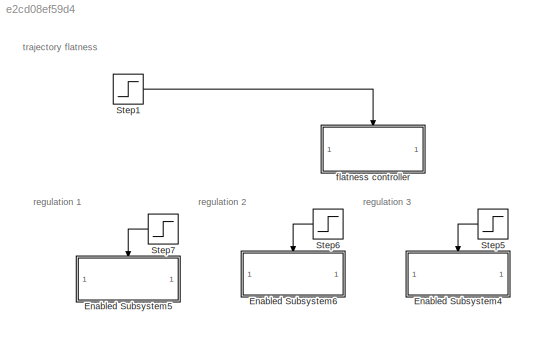
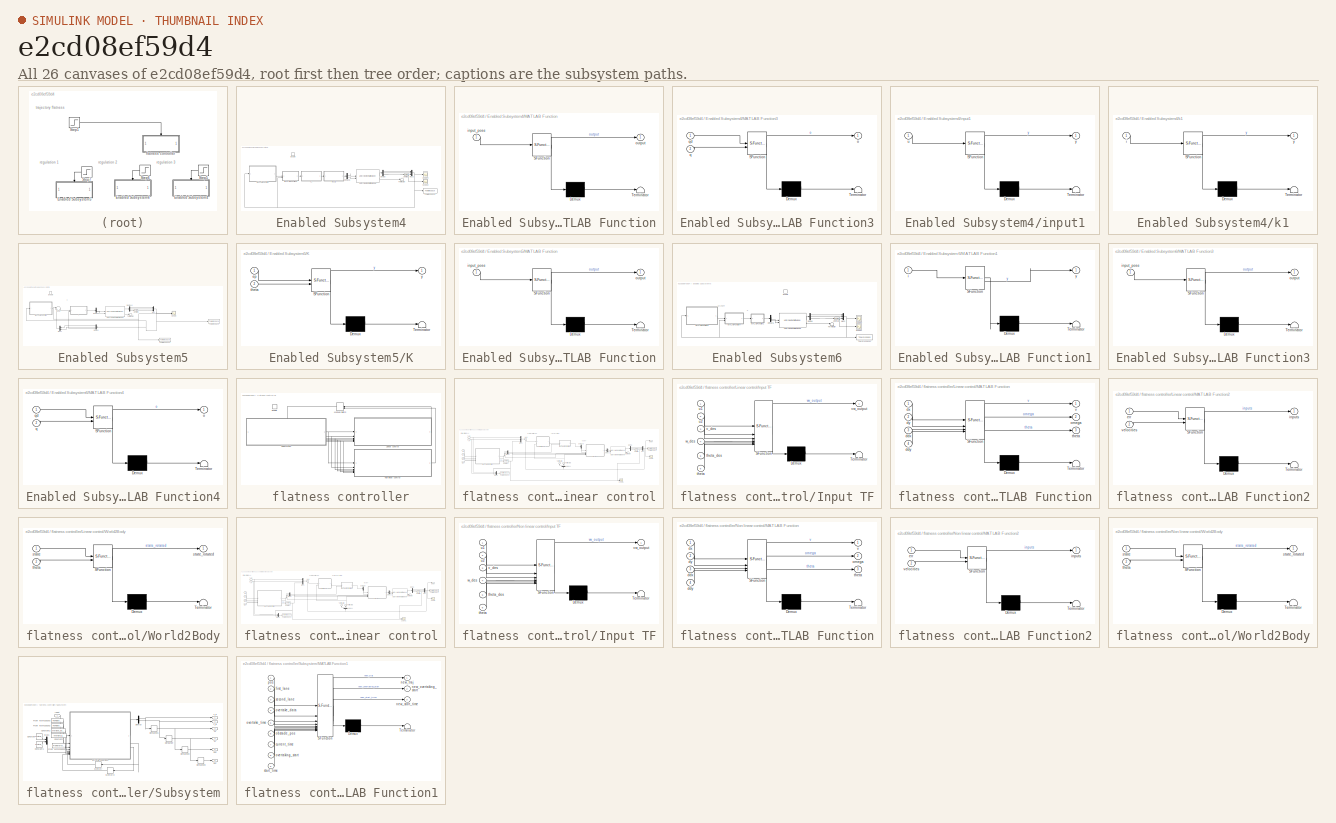
[diagram: thumbnail index - all 26 canvases of the model, root first then tree order]
MODEL slx_e2cd08ef59d4
KIND model
CONFIG AbsTol = auto
CONFIG EnableMultiTasking = off
CONFIG FixedStep = auto
CONFIG MaxStep = auto
CONFIG MinStep = auto
CONFIG RelTol = 1e-3
CONFIG SampleTimeConstraint = Unconstrained
CONFIG SolverName = FixedStepAuto
CONFIG StartTime = 0.0
CONFIG StopTime = 15
WORKSPACE source: mxarray member
WORKSPACE kp: Simulink.Parameter (value not decoded)
BLOCK [SubSystem] Enabled Subsystem4
  Commented = on
  TreatAsAtomicUnit = on
BLOCK [Demux] Enabled Subsystem4/Demux
  Outputs = 3
BLOCK [Demux] Enabled Subsystem4/Demux5
  Outputs = 2
BLOCK [EnablePort] Enabled Subsystem4/Enable
BLOCK [SubSystem] Enabled Subsystem4/MATLAB Function
  ErrorFcn = Stateflow.Translate.translate
  PermitHierarchicalResolution = ExplicitOnly
  SFBlockType = MATLAB Function
  TreatAsAtomicUnit = on
BLOCK [Demux] Enabled Subsystem4/MATLAB Function/ Demux 
  Outputs = 1
BLOCK [S-Function] Enabled Subsystem4/MATLAB Function/ SFunction 
  EnableBusSupport = on
  FunctionName = sf_sfun
  PortCounts = [1 2]
  SFcnIsStateOwnerBlock = off
  SFunctionDeploymentMode = off
  Tag = Stateflow S-Function 7
BLOCK [Terminator] Enabled Subsystem4/MATLAB Function/ Terminator 
BLOCK [Inport] Enabled Subsystem4/MATLAB Function/input_pose
BLOCK [Outport] Enabled Subsystem4/MATLAB Function/output
BLOCK [SubSystem] Enabled Subsystem4/MATLAB Function3
  ErrorFcn = Stateflow.Translate.translate
  PermitHierarchicalResolution = ExplicitOnly
  SFBlockType = MATLAB Function
  TreatAsAtomicUnit = on
BLOCK [Demux] Enabled Subsystem4/MATLAB Function3/ Demux 
  Outputs = 1
BLOCK [S-Function] Enabled Subsystem4/MATLAB Function3/ SFunction 
  EnableBusSupport = on
  FunctionName = sf_sfun
  PortCounts = [2 2]
  SFcnIsStateOwnerBlock = off
  SFunctionDeploymentMode = off
  Tag = Stateflow S-Function 8
BLOCK [Terminator] Enabled Subsystem4/MATLAB Function3/ Terminator 
BLOCK [Outport] Enabled Subsystem4/MATLAB Function3/o
BLOCK [Inport] Enabled Subsystem4/MATLAB Function3/q
  Port = 2
BLOCK [Inport] Enabled Subsystem4/MATLAB Function3/qd
BLOCK [Mux] Enabled Subsystem4/Mux2
  DisplayOption = bar
  Inputs = 3
BLOCK [Scope] Enabled Subsystem4/Scope2
  Floating = off
  NumInputPorts = 1
  ScopeSpecificationString = Simulink.scopes.TimeScopeBlockCfg('CurrentConfiguration', extmgr.ConfigurationSet(extmgr.Configuration('Core','General UI',true),extmgr.Configuration('Core','Source UI',true),extmgr.Configuration('Sources','WiredSimulink',true,'DataLoggingVariableName','ScopeData4'),extmgr.Configuration('Visuals','Time Domain',true,'SerializedDisplays',{struct('MinYLimReal','-0.51276','MaxYLimReal','1.89269','YLab...<+1417ch>
BLOCK [Scope] Enabled Subsystem4/Scope4
  Floating = off
  NumInputPorts = 1
  ScopeSpecificationString = Simulink.scopes.TimeScopeBlockCfg('CurrentConfiguration', extmgr.ConfigurationSet(extmgr.Configuration('Core','General UI',true),extmgr.Configuration('Core','Source UI',true),extmgr.Configuration('Sources','WiredSimulink',true,'DataLoggingVariableName','ScopeData5'),extmgr.Configuration('Visuals','Time Domain',true,'SerializedDisplays',{struct('MinYLimReal','-18.75885','MaxYLimReal','168.82963','Y...<+1472ch>
BLOCK [Terminator] Enabled Subsystem4/Terminator
BLOCK [ToWorkspace] Enabled Subsystem4/To Workspace1
  FixptAsFi = on
  MaxDataPoints = inf
  SampleTime = 0.004
  SaveFormat = Structure With Time
  VariableName = uni_state1
BLOCK [Reference] Enabled Subsystem4/Unicycle Kinematic Model1  REF=robotmobilelib/Unicycle Kinematic Model
  SourceBlock = robotmobilelib/Unicycle Kinematic Model
  SourceType = Unicycle Kinematic Model
BLOCK [Reference] Enabled Subsystem4/Unwrap  REF=dspsigops/Unwrap
  SourceBlock = dspsigops/Unwrap
  SourceType = Unwrap
  UserDataPersistent = on
BLOCK [SubSystem] Enabled Subsystem4/input1
  ErrorFcn = Stateflow.Translate.translate
  PermitHierarchicalResolution = ExplicitOnly
  SFBlockType = MATLAB Function
  TreatAsAtomicUnit = on
BLOCK [Demux] Enabled Subsystem4/input1/ Demux 
  Outputs = 1
BLOCK [S-Function] Enabled Subsystem4/input1/ SFunction 
  EnableBusSupport = on
  FunctionName = sf_sfun
  PortCounts = [1 2]
  SFcnIsStateOwnerBlock = off
  SFunctionDeploymentMode = off
  Tag = Stateflow S-Function 9
BLOCK [Terminator] Enabled Subsystem4/input1/ Terminator 
BLOCK [Inport] Enabled Subsystem4/input1/u
BLOCK [Outport] Enabled Subsystem4/input1/y
BLOCK [SubSystem] Enabled Subsystem4/k1
  ErrorFcn = Stateflow.Translate.translate
  PermitHierarchicalResolution = ExplicitOnly
  SFBlockType = MATLAB Function
  TreatAsAtomicUnit = on
BLOCK [Demux] Enabled Subsystem4/k1/ Demux 
  Outputs = 1
BLOCK [S-Function] Enabled Subsystem4/k1/ SFunction 
  EnableBusSupport = on
  FunctionName = sf_sfun
  PortCounts = [1 2]
  SFcnIsStateOwnerBlock = off
  SFunctionDeploymentMode = off
  Tag = Stateflow S-Function 16
BLOCK [Terminator] Enabled Subsystem4/k1/ Terminator 
BLOCK [Inport] Enabled Subsystem4/k1/i
BLOCK [Outport] Enabled Subsystem4/k1/y
BLOCK [SubSystem] Enabled Subsystem5
  TreatAsAtomicUnit = on
BLOCK [Demux] Enabled Subsystem5/Demux
  NameLocation = top
  Outputs = 3
BLOCK [Demux] Enabled Subsystem5/Demux2
  Outputs = 2
BLOCK [Demux] Enabled Subsystem5/Demux4
  Outputs = 3
BLOCK [EnablePort] Enabled Subsystem5/Enable
BLOCK [SubSystem] Enabled Subsystem5/K
  ErrorFcn = Stateflow.Translate.translate
  PermitHierarchicalResolution = ExplicitOnly
  SFBlockType = MATLAB Function
  TreatAsAtomicUnit = on
BLOCK [Demux] Enabled Subsystem5/K/ Demux 
  Outputs = 1
BLOCK [S-Function] Enabled Subsystem5/K/ SFunction 
  EnableBusSupport = on
  FunctionName = sf_sfun
  PortCounts = [2 2]
  SFcnIsStateOwnerBlock = off
  SFunctionDeploymentMode = off
  Tag = Stateflow S-Function 10
BLOCK [Terminator] Enabled Subsystem5/K/ Terminator 
BLOCK [Inport] Enabled Subsystem5/K/ep
BLOCK [Inport] Enabled Subsystem5/K/theta
  Port = 2
BLOCK [Outport] Enabled Subsystem5/K/y
BLOCK [SubSystem] Enabled Subsystem5/MATLAB Function
  ErrorFcn = Stateflow.Translate.translate
  PermitHierarchicalResolution = ExplicitOnly
  SFBlockType = MATLAB Function
  TreatAsAtomicUnit = on
BLOCK [Demux] Enabled Subsystem5/MATLAB Function/ Demux 
  Outputs = 1
BLOCK [S-Function] Enabled Subsystem5/MATLAB Function/ SFunction 
  EnableBusSupport = on
  FunctionName = sf_sfun
  PortCounts = [1 2]
  SFcnIsStateOwnerBlock = off
  SFunctionDeploymentMode = off
  Tag = Stateflow S-Function 23
BLOCK [Terminator] Enabled Subsystem5/MATLAB Function/ Terminator 
BLOCK [Inport] Enabled Subsystem5/MATLAB Function/input_pose
BLOCK [Outport] Enabled Subsystem5/MATLAB Function/output
BLOCK [Mux] Enabled Subsystem5/Mux
  DisplayOption = bar
  Inputs = 3
BLOCK [Mux] Enabled Subsystem5/Mux1
  DisplayOption = bar
  Inputs = 2
  NameLocation = top
BLOCK [Scope] Enabled Subsystem5/Scope
  Floating = off
  NumInputPorts = 2
  ScopeSpecificationString = Simulink.scopes.TimeScopeBlockCfg('CurrentConfiguration', extmgr.ConfigurationSet(extmgr.Configuration('Core','General UI',true),extmgr.Configuration('Core','Source UI',true),extmgr.Configuration('Sources','WiredSimulink',true,'DataLoggingVariableName','ScopeData1'),extmgr.Configuration('Visuals','Time Domain',true,'SerializedDisplays',{struct('MinYLimReal','-35.55536','MaxYLimReal','319.99823','Y...<+1510ch>
BLOCK [Sum] Enabled Subsystem5/Sum2
  Inputs = ||+-|
BLOCK [Terminator] Enabled Subsystem5/Terminator
BLOCK [ToWorkspace] Enabled Subsystem5/To Workspace
  FixptAsFi = on
  MaxDataPoints = inf
  SampleTime = 0.01
  SaveFormat = Structure With Time
  VariableName = uni_state
BLOCK [ToWorkspace] Enabled Subsystem5/To Workspace4
  FixptAsFi = on
  MaxDataPoints = inf
  SampleTime = 0.01
  SaveFormat = Structure With Time
  VariableName = reference
BLOCK [Reference] Enabled Subsystem5/Unicycle Kinematic Model1  REF=robotmobilelib/Unicycle Kinematic Model
  SourceBlock = robotmobilelib/Unicycle Kinematic Model
  SourceType = Unicycle Kinematic Model
BLOCK [Reference] Enabled Subsystem5/Unwrap  REF=dspsigops/Unwrap
  SourceBlock = dspsigops/Unwrap
  SourceType = Unwrap
  UserDataPersistent = on
BLOCK [SubSystem] Enabled Subsystem6
  Commented = on
  TreatAsAtomicUnit = on
BLOCK [Demux] Enabled Subsystem6/Demux
  Outputs = 3
BLOCK [Demux] Enabled Subsystem6/Demux5
  Outputs = 2
BLOCK [EnablePort] Enabled Subsystem6/Enable
BLOCK [SubSystem] Enabled Subsystem6/MATLAB Function1
  ErrorFcn = Stateflow.Translate.translate
  PermitHierarchicalResolution = ExplicitOnly
  SFBlockType = MATLAB Function
  TreatAsAtomicUnit = on
BLOCK [Demux] Enabled Subsystem6/MATLAB Function1/ Demux 
  Outputs = 1
BLOCK [S-Function] Enabled Subsystem6/MATLAB Function1/ SFunction 
  EnableBusSupport = on
  FunctionName = sf_sfun
  PortCounts = [1 2]
  SFcnIsStateOwnerBlock = off
  SFunctionDeploymentMode = off
  Tag = Stateflow S-Function 24
BLOCK [Terminator] Enabled Subsystem6/MATLAB Function1/ Terminator 
BLOCK [Inport] Enabled Subsystem6/MATLAB Function1/i
BLOCK [Outport] Enabled Subsystem6/MATLAB Function1/y
BLOCK [SubSystem] Enabled Subsystem6/MATLAB Function3
  ErrorFcn = Stateflow.Translate.translate
  PermitHierarchicalResolution = ExplicitOnly
  SFBlockType = MATLAB Function
  TreatAsAtomicUnit = on
BLOCK [Demux] Enabled Subsystem6/MATLAB Function3/ Demux 
  Outputs = 1
BLOCK [S-Function] Enabled Subsystem6/MATLAB Function3/ SFunction 
  EnableBusSupport = on
  FunctionName = sf_sfun
  PortCounts = [1 2]
  SFcnIsStateOwnerBlock = off
  SFunctionDeploymentMode = off
  Tag = Stateflow S-Function 25
BLOCK [Terminator] Enabled Subsystem6/MATLAB Function3/ Terminator 
BLOCK [Inport] Enabled Subsystem6/MATLAB Function3/input_pose
BLOCK [Outport] Enabled Subsystem6/MATLAB Function3/output
BLOCK [SubSystem] Enabled Subsystem6/MATLAB Function4
  ErrorFcn = Stateflow.Translate.translate
  PermitHierarchicalResolution = ExplicitOnly
  SFBlockType = MATLAB Function
  TreatAsAtomicUnit = on
BLOCK [Demux] Enabled Subsystem6/MATLAB Function4/ Demux 
  Outputs = 1
BLOCK [S-Function] Enabled Subsystem6/MATLAB Function4/ SFunction 
  EnableBusSupport = on
  FunctionName = sf_sfun
  PortCounts = [2 2]
  SFcnIsStateOwnerBlock = off
  SFunctionDeploymentMode = off
  Tag = Stateflow S-Function 26
BLOCK [Terminator] Enabled Subsystem6/MATLAB Function4/ Terminator 
BLOCK [Outport] Enabled Subsystem6/MATLAB Function4/o
BLOCK [Inport] Enabled Subsystem6/MATLAB Function4/q
  Port = 2
BLOCK [Inport] Enabled Subsystem6/MATLAB Function4/qd
BLOCK [Mux] Enabled Subsystem6/Mux2
  DisplayOption = bar
  Inputs = 3
BLOCK [Scope] Enabled Subsystem6/Scope1
  Floating = off
  NumInputPorts = 1
  ScopeSpecificationString = Simulink.scopes.TimeScopeBlockCfg('CurrentConfiguration', extmgr.ConfigurationSet(extmgr.Configuration('Core','General UI',true),extmgr.Configuration('Core','Source UI',true),extmgr.Configuration('Sources','WiredSimulink',true,'DataLoggingVariableName','ScopeData2'),extmgr.Configuration('Visuals','Time Domain',true,'SerializedDisplays',{struct('MinYLimReal','-0.50543','MaxYLimReal','2.27484','YLab...<+1417ch>
BLOCK [Scope] Enabled Subsystem6/Scope4
  Floating = off
  NumInputPorts = 1
  ScopeSpecificationString = Simulink.scopes.TimeScopeBlockCfg('CurrentConfiguration', extmgr.ConfigurationSet(extmgr.Configuration('Core','General UI',true),extmgr.Configuration('Core','Source UI',true),extmgr.Configuration('Sources','WiredSimulink',true,'DataLoggingVariableName','ScopeData3'),extmgr.Configuration('Visuals','Time Domain',true,'SerializedDisplays',{struct('MinYLimReal','-35.59535','MaxYLimReal','315.06615','Y...<+1472ch>
BLOCK [Terminator] Enabled Subsystem6/Terminator
BLOCK [ToWorkspace] Enabled Subsystem6/To Workspace2
  FixptAsFi = on
  MaxDataPoints = inf
  SampleTime = 0.001
  SaveFormat = Structure With Time
  VariableName = uni_state1
BLOCK [Reference] Enabled Subsystem6/Unicycle Kinematic Model2  REF=robotmobilelib/Unicycle Kinematic Model
  SourceBlock = robotmobilelib/Unicycle Kinematic Model
  SourceType = Unicycle Kinematic Model
BLOCK [Reference] Enabled Subsystem6/Unwrap  REF=dspsigops/Unwrap
  SourceBlock = dspsigops/Unwrap
  SourceType = Unwrap
  UserDataPersistent = on
BLOCK [Step] Step1
  After = 0
  Before = 1
  SampleTime = 0
  Time = 10
BLOCK [Step] Step5
  Commented = on
  SampleTime = 0
  Time = 10
BLOCK [Step] Step6
  Commented = on
  SampleTime = 0
  Time = 10
BLOCK [Step] Step7
  SampleTime = 0
  Time = 10
BLOCK [SubSystem] flatness controller
  TreatAsAtomicUnit = on
BLOCK [EnablePort] flatness controller/Enable
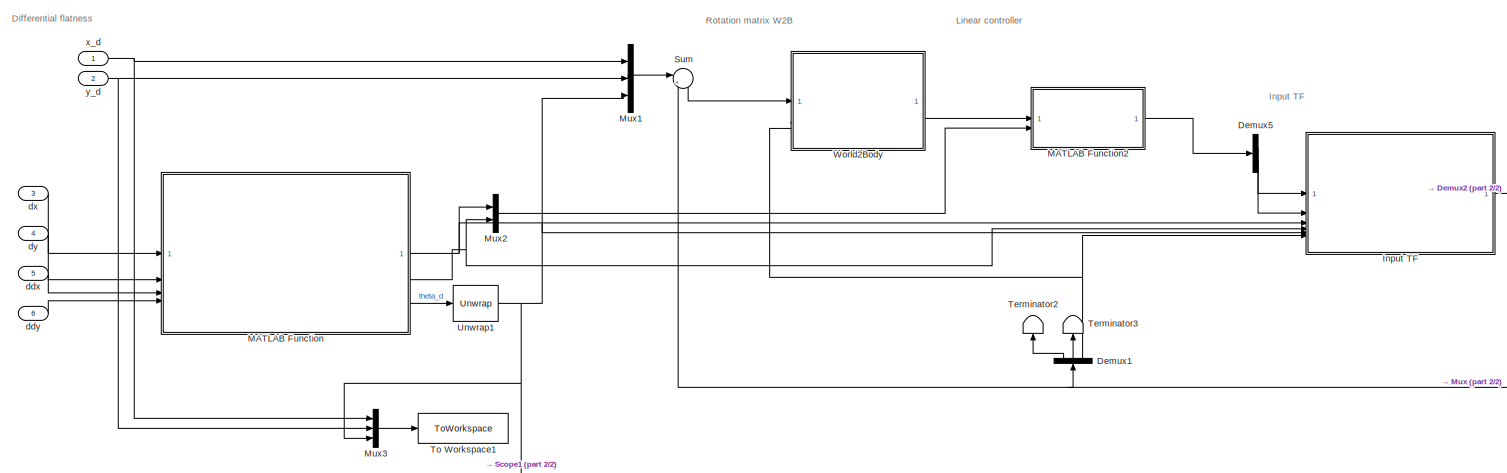
[diagram: flatness controller/Linear control - part 1/2, most of the canvas]
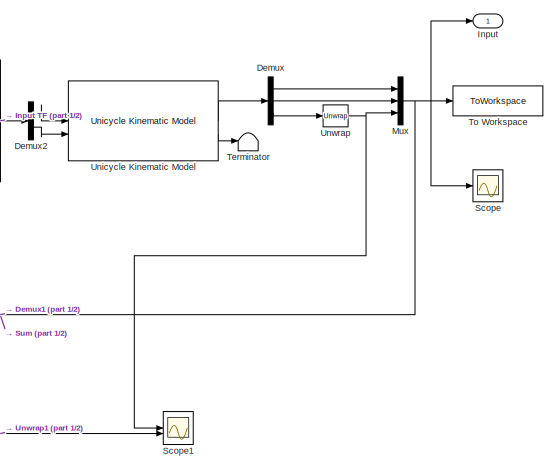
[diagram: flatness controller/Linear control - part 2/2, right side, full height]
BLOCK [SubSystem] flatness controller/Linear control
  Commented = on
  PortSchema = {"entries":[{"content":{"sides":[{"content":{"connectorIds":["In1","In2","In3","In4","In5","In6"]},"type":"ConnectorPlacement.EquallySpacedRectSide","uuid":"9439d29c-34b2-4c3b-89f6-95a613f6df6b"},{"content":{"side":"RIGHT"},"type":"ConnectorPlacement.EquallySpacedRectSide","uuid":"e3292a0e-d5d9-4e7c-90ea-e2dda34ca713"},{"content":{"connectorIds":["Out1"],"side":"TOP"},"type":"ConnectorPlacement.Eq...<+252ch>
BLOCK [Demux] flatness controller/Linear control/Demux
  Outputs = 3
BLOCK [Demux] flatness controller/Linear control/Demux1
  NameLocation = right
  Outputs = 3
BLOCK [Demux] flatness controller/Linear control/Demux2
  Outputs = 2
BLOCK [Demux] flatness controller/Linear control/Demux5
  Outputs = 2
BLOCK [Outport] flatness controller/Linear control/Input
BLOCK [SubSystem] flatness controller/Linear control/Input TF
  ErrorFcn = Stateflow.Translate.translate
  PermitHierarchicalResolution = ExplicitOnly
  SFBlockType = MATLAB Function
  TreatAsAtomicUnit = on
BLOCK [Demux] flatness controller/Linear control/Input TF/ Demux 
  Outputs = 1
BLOCK [S-Function] flatness controller/Linear control/Input TF/ SFunction 
  EnableBusSupport = on
  FunctionName = sf_sfun
  PortCounts = [6 2]
  SFcnIsStateOwnerBlock = off
  SFunctionDeploymentMode = off
  Tag = Stateflow S-Function 3
BLOCK [Terminator] flatness controller/Linear control/Input TF/ Terminator 
BLOCK [Inport] flatness controller/Linear control/Input TF/theta
  Port = 6
BLOCK [Inport] flatness controller/Linear control/Input TF/theta_des
  Port = 5
BLOCK [Inport] flatness controller/Linear control/Input TF/u1
BLOCK [Inport] flatness controller/Linear control/Input TF/u2
  Port = 2
BLOCK [Inport] flatness controller/Linear control/Input TF/v_des
  Port = 3
BLOCK [Outport] flatness controller/Linear control/Input TF/vw_output
BLOCK [Inport] flatness controller/Linear control/Input TF/w_des
  Port = 4
BLOCK [SubSystem] flatness controller/Linear control/MATLAB Function
  ErrorFcn = Stateflow.Translate.translate
  PermitHierarchicalResolution = ExplicitOnly
  SFBlockType = MATLAB Function
  TreatAsAtomicUnit = on
BLOCK [Demux] flatness controller/Linear control/MATLAB Function/ Demux 
  Outputs = 1
BLOCK [S-Function] flatness controller/Linear control/MATLAB Function/ SFunction 
  EnableBusSupport = on
  FunctionName = sf_sfun
  PortCounts = [4 4]
  SFcnIsStateOwnerBlock = off
  SFunctionDeploymentMode = off
  Tag = Stateflow S-Function 2
BLOCK [Terminator] flatness controller/Linear control/MATLAB Function/ Terminator 
BLOCK [Inport] flatness controller/Linear control/MATLAB Function/ddx
  Port = 3
BLOCK [Inport] flatness controller/Linear control/MATLAB Function/ddy
  Port = 4
BLOCK [Inport] flatness controller/Linear control/MATLAB Function/dx
BLOCK [Inport] flatness controller/Linear control/MATLAB Function/dy
  Port = 2
BLOCK [Outport] flatness controller/Linear control/MATLAB Function/omega
  Port = 2
BLOCK [Outport] flatness controller/Linear control/MATLAB Function/theta
  Port = 3
BLOCK [Outport] flatness controller/Linear control/MATLAB Function/v
BLOCK [SubSystem] flatness controller/Linear control/MATLAB Function2
  ErrorFcn = Stateflow.Translate.translate
  PermitHierarchicalResolution = ExplicitOnly
  SFBlockType = MATLAB Function
  TreatAsAtomicUnit = on
BLOCK [Demux] flatness controller/Linear control/MATLAB Function2/ Demux 
  Outputs = 1
BLOCK [S-Function] flatness controller/Linear control/MATLAB Function2/ SFunction 
  EnableBusSupport = on
  FunctionName = sf_sfun
  PortCounts = [2 2]
  SFcnIsStateOwnerBlock = off
  SFunctionDeploymentMode = off
  Tag = Stateflow S-Function 4
BLOCK [Terminator] flatness controller/Linear control/MATLAB Function2/ Terminator 
BLOCK [Inport] flatness controller/Linear control/MATLAB Function2/err
BLOCK [Outport] flatness controller/Linear control/MATLAB Function2/inputs
BLOCK [Inport] flatness controller/Linear control/MATLAB Function2/velocities
  Port = 2
BLOCK [Mux] flatness controller/Linear control/Mux
  DisplayOption = bar
  Inputs = 3
BLOCK [Mux] flatness controller/Linear control/Mux1
  DisplayOption = bar
  Inputs = 3
BLOCK [Mux] flatness controller/Linear control/Mux2
  DisplayOption = bar
  Inputs = 2
BLOCK [Mux] flatness controller/Linear control/Mux3
  DisplayOption = bar
  Inputs = 3
BLOCK [Scope] flatness controller/Linear control/Scope
  Floating = off
  NumInputPorts = 1
  ScopeSpecificationString = Simulink.scopes.TimeScopeBlockCfg('CurrentConfiguration', extmgr.ConfigurationSet(extmgr.Configuration('Core','General UI',true),extmgr.Configuration('Core','Source UI',true),extmgr.Configuration('Sources','WiredSimulink',true,'DataLoggingVariableName','ScopeData1'),extmgr.Configuration('Visuals','Time Domain',true,'SerializedDisplays',{struct('MinYLimReal','-42.89211','MaxYLimReal','41.77247','YL...<+1462ch>
BLOCK [Scope] flatness controller/Linear control/Scope1
  Floating = off
  NumInputPorts = 2
  ScopeSpecificationString = Simulink.scopes.TimeScopeBlockCfg('CurrentConfiguration', extmgr.ConfigurationSet(extmgr.Configuration('Core','General UI',true),extmgr.Configuration('Core','Source UI',true),extmgr.Configuration('Sources','WiredSimulink',true,'DataLoggingVariableName','ScopeData3'),extmgr.Configuration('Visuals','Time Domain',true,'SerializedDisplays',{struct('MinYLimReal','0.572','MaxYLimReal','4.70861','YLabelR...<+1434ch>
BLOCK [Sum] flatness controller/Linear control/Sum
  Inputs = |+-
BLOCK [Terminator] flatness controller/Linear control/Terminator
BLOCK [Terminator] flatness controller/Linear control/Terminator2
  NameLocation = right
BLOCK [Terminator] flatness controller/Linear control/Terminator3
  NameLocation = right
BLOCK [ToWorkspace] flatness controller/Linear control/To Workspace
  FixptAsFi = on
  MaxDataPoints = inf
  SampleTime = 0.002
  SaveFormat = Structure With Time
  VariableName = uni_state
BLOCK [ToWorkspace] flatness controller/Linear control/To Workspace1
  FixptAsFi = on
  MaxDataPoints = inf
  SampleTime = 0.002
  SaveFormat = Structure With Time
  VariableName = reference
BLOCK [Reference] flatness controller/Linear control/Unicycle Kinematic Model  REF=robotmobilelib/Unicycle Kinematic Model
  SourceBlock = robotmobilelib/Unicycle Kinematic Model
  SourceType = Unicycle Kinematic Model
BLOCK [Reference] flatness controller/Linear control/Unwrap  REF=dspsigops/Unwrap
  SourceBlock = dspsigops/Unwrap
  SourceType = Unwrap
  UserDataPersistent = on
BLOCK [Reference] flatness controller/Linear control/Unwrap1  REF=dspsigops/Unwrap
  SourceBlock = dspsigops/Unwrap
  SourceType = Unwrap
  UserDataPersistent = on
BLOCK [SubSystem] flatness controller/Linear control/World2Body
  ErrorFcn = Stateflow.Translate.translate
  PermitHierarchicalResolution = ExplicitOnly
  SFBlockType = MATLAB Function
  TreatAsAtomicUnit = on
BLOCK [Demux] flatness controller/Linear control/World2Body/ Demux 
  Outputs = 1
BLOCK [S-Function] flatness controller/Linear control/World2Body/ SFunction 
  EnableBusSupport = on
  FunctionName = sf_sfun
  PortCounts = [2 2]
  SFcnIsStateOwnerBlock = off
  SFunctionDeploymentMode = off
  Tag = Stateflow S-Function 1
BLOCK [Terminator] flatness controller/Linear control/World2Body/ Terminator 
BLOCK [Inport] flatness controller/Linear control/World2Body/state
BLOCK [Outport] flatness controller/Linear control/World2Body/state_rotated
BLOCK [Inport] flatness controller/Linear control/World2Body/theta
  Port = 2
BLOCK [Inport] flatness controller/Linear control/ddx
  NameLocation = left
  Port = 5
BLOCK [Inport] flatness controller/Linear control/ddy
  NameLocation = left
  Port = 6
BLOCK [Inport] flatness controller/Linear control/dx
  NameLocation = left
  Port = 3
BLOCK [Inport] flatness controller/Linear control/dy
  NameLocation = left
  Port = 4
BLOCK [Inport] flatness controller/Linear control/x_d
  NameLocation = left
BLOCK [Inport] flatness controller/Linear control/y_d
  NameLocation = left
  Port = 2
BLOCK [ManualSwitch] flatness controller/Manual Switch
  CurrentSetting = 0
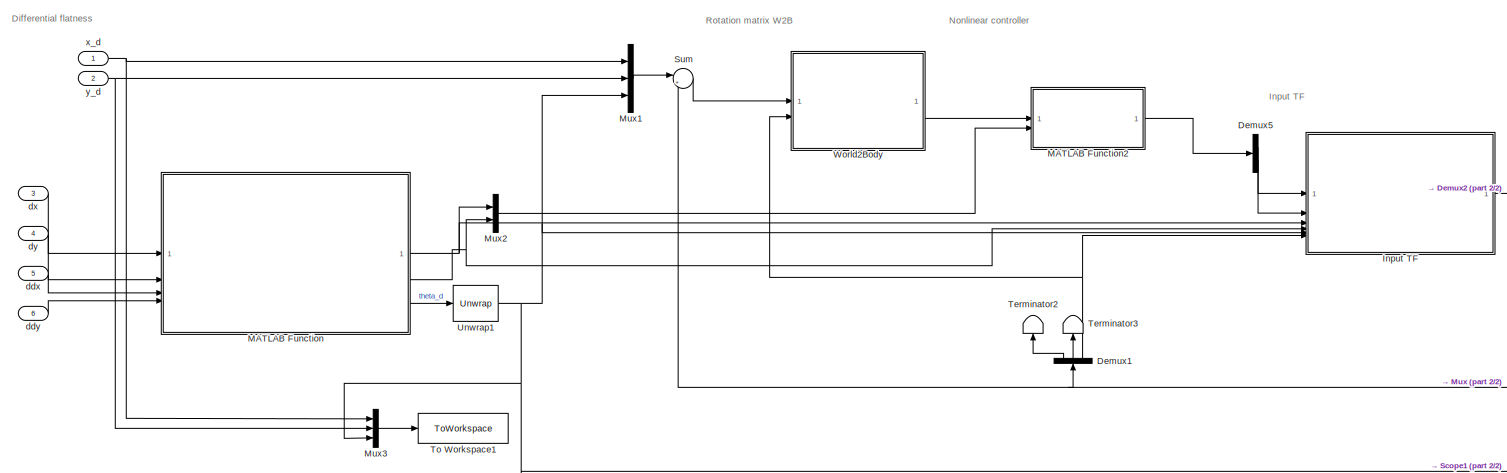
[diagram: flatness controller/Non linear control - part 1/2, most of the canvas]
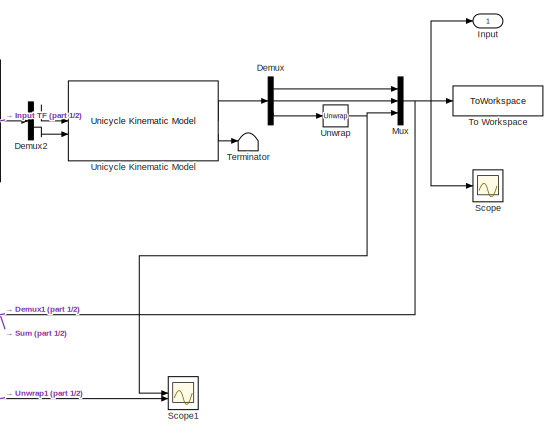
[diagram: flatness controller/Non linear control - part 2/2, right side, full height]
BLOCK [SubSystem] flatness controller/Non linear control
BLOCK [Demux] flatness controller/Non linear control/Demux
  Outputs = 3
BLOCK [Demux] flatness controller/Non linear control/Demux1
  NameLocation = right
  Outputs = 3
BLOCK [Demux] flatness controller/Non linear control/Demux2
  Outputs = 2
BLOCK [Demux] flatness controller/Non linear control/Demux5
  Outputs = 2
BLOCK [Outport] flatness controller/Non linear control/Input
BLOCK [SubSystem] flatness controller/Non linear control/Input TF
  ErrorFcn = Stateflow.Translate.translate
  PermitHierarchicalResolution = ExplicitOnly
  SFBlockType = MATLAB Function
  TreatAsAtomicUnit = on
BLOCK [Demux] flatness controller/Non linear control/Input TF/ Demux 
  Outputs = 1
BLOCK [S-Function] flatness controller/Non linear control/Input TF/ SFunction 
  EnableBusSupport = on
  FunctionName = sf_sfun
  PortCounts = [6 2]
  SFcnIsStateOwnerBlock = off
  SFunctionDeploymentMode = off
  Tag = Stateflow S-Function 5
BLOCK [Terminator] flatness controller/Non linear control/Input TF/ Terminator 
BLOCK [Inport] flatness controller/Non linear control/Input TF/theta
  Port = 6
BLOCK [Inport] flatness controller/Non linear control/Input TF/theta_des
  Port = 5
BLOCK [Inport] flatness controller/Non linear control/Input TF/u1
BLOCK [Inport] flatness controller/Non linear control/Input TF/u2
  Port = 2
BLOCK [Inport] flatness controller/Non linear control/Input TF/v_des
  Port = 3
BLOCK [Outport] flatness controller/Non linear control/Input TF/vw_output
BLOCK [Inport] flatness controller/Non linear control/Input TF/w_des
  Port = 4
BLOCK [SubSystem] flatness controller/Non linear control/MATLAB Function
  ErrorFcn = Stateflow.Translate.translate
  PermitHierarchicalResolution = ExplicitOnly
  SFBlockType = MATLAB Function
  TreatAsAtomicUnit = on
BLOCK [Demux] flatness controller/Non linear control/MATLAB Function/ Demux 
  Outputs = 1
BLOCK [S-Function] flatness controller/Non linear control/MATLAB Function/ SFunction 
  EnableBusSupport = on
  FunctionName = sf_sfun
  PortCounts = [4 4]
  SFcnIsStateOwnerBlock = off
  SFunctionDeploymentMode = off
  Tag = Stateflow S-Function 6
BLOCK [Terminator] flatness controller/Non linear control/MATLAB Function/ Terminator 
BLOCK [Inport] flatness controller/Non linear control/MATLAB Function/ddx
  Port = 3
BLOCK [Inport] flatness controller/Non linear control/MATLAB Function/ddy
  Port = 4
BLOCK [Inport] flatness controller/Non linear control/MATLAB Function/dx
BLOCK [Inport] flatness controller/Non linear control/MATLAB Function/dy
  Port = 2
BLOCK [Outport] flatness controller/Non linear control/MATLAB Function/omega
  Port = 2
BLOCK [Outport] flatness controller/Non linear control/MATLAB Function/theta
  Port = 3
BLOCK [Outport] flatness controller/Non linear control/MATLAB Function/v
BLOCK [SubSystem] flatness controller/Non linear control/MATLAB Function2
  ErrorFcn = Stateflow.Translate.translate
  PermitHierarchicalResolution = ExplicitOnly
  SFBlockType = MATLAB Function
  TreatAsAtomicUnit = on
BLOCK [Demux] flatness controller/Non linear control/MATLAB Function2/ Demux 
  Outputs = 1
BLOCK [S-Function] flatness controller/Non linear control/MATLAB Function2/ SFunction 
  EnableBusSupport = on
  FunctionName = sf_sfun
  PortCounts = [2 2]
  SFcnIsStateOwnerBlock = off
  SFunctionDeploymentMode = off
  Tag = Stateflow S-Function 18
BLOCK [Terminator] flatness controller/Non linear control/MATLAB Function2/ Terminator 
BLOCK [Inport] flatness controller/Non linear control/MATLAB Function2/err
BLOCK [Outport] flatness controller/Non linear control/MATLAB Function2/inputs
BLOCK [Inport] flatness controller/Non linear control/MATLAB Function2/velocities
  Port = 2
BLOCK [Mux] flatness controller/Non linear control/Mux
  DisplayOption = bar
  Inputs = 3
BLOCK [Mux] flatness controller/Non linear control/Mux1
  DisplayOption = bar
  Inputs = 3
BLOCK [Mux] flatness controller/Non linear control/Mux2
  DisplayOption = bar
  Inputs = 2
BLOCK [Mux] flatness controller/Non linear control/Mux3
  DisplayOption = bar
  Inputs = 3
BLOCK [Scope] flatness controller/Non linear control/Scope
  Floating = off
  NumInputPorts = 1
  ScopeSpecificationString = Simulink.scopes.TimeScopeBlockCfg('CurrentConfiguration', extmgr.ConfigurationSet(extmgr.Configuration('Core','General UI',true),extmgr.Configuration('Core','Source UI',true),extmgr.Configuration('Sources','WiredSimulink',true,'DataLoggingVariableName','ScopeData2'),extmgr.Configuration('Visuals','Time Domain',true,'SerializedDisplays',{struct('MinYLimReal','-70.9161','MaxYLimReal','627.32576','YL...<+1394ch>
BLOCK [Scope] flatness controller/Non linear control/Scope1
  Floating = off
  NumInputPorts = 2
  ScopeSpecificationString = Simulink.scopes.TimeScopeBlockCfg('CurrentConfiguration', extmgr.ConfigurationSet(extmgr.Configuration('Core','General UI',true),extmgr.Configuration('Core','Source UI',true),extmgr.Configuration('Sources','WiredSimulink',true,'DataLoggingVariableName','ScopeData4'),extmgr.Configuration('Visuals','Time Domain',true,'SerializedDisplays',{struct('MinYLimReal','-3.53425','MaxYLimReal','7.37036','YLab...<+1444ch>
BLOCK [Sum] flatness controller/Non linear control/Sum
  Inputs = |+-
BLOCK [Terminator] flatness controller/Non linear control/Terminator
BLOCK [Terminator] flatness controller/Non linear control/Terminator2
  NameLocation = right
BLOCK [Terminator] flatness controller/Non linear control/Terminator3
  NameLocation = right
BLOCK [ToWorkspace] flatness controller/Non linear control/To Workspace
  FixptAsFi = on
  MaxDataPoints = inf
  SampleTime = 0.002
  SaveFormat = Structure With Time
  VariableName = uni_state
BLOCK [ToWorkspace] flatness controller/Non linear control/To Workspace1
  FixptAsFi = on
  MaxDataPoints = inf
  SampleTime = 0.002
  SaveFormat = Structure With Time
  VariableName = reference
BLOCK [Reference] flatness controller/Non linear control/Unicycle Kinematic Model  REF=robotmobilelib/Unicycle Kinematic Model
  SourceBlock = robotmobilelib/Unicycle Kinematic Model
  SourceType = Unicycle Kinematic Model
BLOCK [Reference] flatness controller/Non linear control/Unwrap  REF=dspsigops/Unwrap
  SourceBlock = dspsigops/Unwrap
  SourceType = Unwrap
  UserDataPersistent = on
BLOCK [Reference] flatness controller/Non linear control/Unwrap1  REF=dspsigops/Unwrap
  SourceBlock = dspsigops/Unwrap
  SourceType = Unwrap
  UserDataPersistent = on
BLOCK [SubSystem] flatness controller/Non linear control/World2Body
  ErrorFcn = Stateflow.Translate.translate
  PermitHierarchicalResolution = ExplicitOnly
  SFBlockType = MATLAB Function
  TreatAsAtomicUnit = on
BLOCK [Demux] flatness controller/Non linear control/World2Body/ Demux 
  Outputs = 1
BLOCK [S-Function] flatness controller/Non linear control/World2Body/ SFunction 
  EnableBusSupport = on
  FunctionName = sf_sfun
  PortCounts = [2 2]
  SFcnIsStateOwnerBlock = off
  SFunctionDeploymentMode = off
  Tag = Stateflow S-Function 19
BLOCK [Terminator] flatness controller/Non linear control/World2Body/ Terminator 
BLOCK [Inport] flatness controller/Non linear control/World2Body/state
BLOCK [Outport] flatness controller/Non linear control/World2Body/state_rotated
BLOCK [Inport] flatness controller/Non linear control/World2Body/theta
  Port = 2
BLOCK [Inport] flatness controller/Non linear control/ddx
  NameLocation = left
  Port = 5
BLOCK [Inport] flatness controller/Non linear control/ddy
  NameLocation = left
  Port = 6
BLOCK [Inport] flatness controller/Non linear control/dx
  NameLocation = left
  Port = 3
BLOCK [Inport] flatness controller/Non linear control/dy
  NameLocation = left
  Port = 4
BLOCK [Inport] flatness controller/Non linear control/x_d
  NameLocation = left
BLOCK [Inport] flatness controller/Non linear control/y_d
  NameLocation = left
  Port = 2
BLOCK [SubSystem] flatness controller/Subsystem
  PortSchema = {"entries":[{"content":{"sides":[{"content":{"connectorIds":[]},"type":"ConnectorPlacement.EquallySpacedRectSide","uuid":"bab0430f-2040-4f48-ad8d-487ab7428587"},{"content":{"connectorIds":["Out1","Out2","Out3","Out4","Out5","Out6"],"side":"RIGHT"},"type":"ConnectorPlacement.EquallySpacedRectSide","uuid":"fe81b18b-57b7-4f8a-a498-2bb577fc7a66"},{"content":{"connectorIds":["In1"],"side":"TOP"},"type"...<+275ch>
BLOCK [Constant] flatness controller/Subsystem/Constant
  Value = obstacle_x
BLOCK [Constant] flatness controller/Subsystem/Constant1
  Value = obstacle_y
BLOCK [Constant] flatness controller/Subsystem/Constant2
  Value = overtake_data
BLOCK [Constant] flatness controller/Subsystem/Constant3
  Value = overtake_time
BLOCK [Demux] flatness controller/Subsystem/Demux
  Outputs = 2
BLOCK [Derivative] flatness controller/Subsystem/Derivative
BLOCK [Derivative] flatness controller/Subsystem/Derivative1
BLOCK [Derivative] flatness controller/Subsystem/Derivative2
BLOCK [Derivative] flatness controller/Subsystem/Derivative3
BLOCK [FromWorkspace] flatness controller/Subsystem/From Workspace2
  VariableName = second_lane
BLOCK [FromWorkspace] flatness controller/Subsystem/From Workspace3
  VariableName = ref_data
BLOCK [FromWorkspace] flatness controller/Subsystem/From Workspace4
  VariableName = current_time
BLOCK [Inport] flatness controller/Subsystem/Input
BLOCK [SubSystem] flatness controller/Subsystem/MATLAB Function1
  ErrorFcn = Stateflow.Translate.translate
  LibrarySourceBlock = simulink/User-Defined\nFunctions/MATLAB Function
  PermitHierarchicalResolution = ExplicitOnly
  SFBlockType = MATLAB Function
  TreatAsAtomicUnit = on
BLOCK [Demux] flatness controller/Subsystem/MATLAB Function1/ Demux 
  Outputs = 1
BLOCK [S-Function] flatness controller/Subsystem/MATLAB Function1/ SFunction 
  EnableBusSupport = on
  FunctionName = sf_sfun
  PortCounts = [9 4]
  SFcnIsStateOwnerBlock = off
  SFunctionDeploymentMode = off
  Tag = Stateflow S-Function 20
BLOCK [Terminator] flatness controller/Subsystem/MATLAB Function1/ Terminator 
BLOCK [Inport] flatness controller/Subsystem/MATLAB Function1/current_time
  Port = 7
BLOCK [Inport] flatness controller/Subsystem/MATLAB Function1/first_lane
  Port = 2
BLOCK [Outport] flatness controller/Subsystem/MATLAB Function1/new_overtaking_start
  Port = 2
BLOCK [Outport] flatness controller/Subsystem/MATLAB Function1/new_start_time
  Port = 3
BLOCK [Outport] flatness controller/Subsystem/MATLAB Function1/new_traj
BLOCK [Inport] flatness controller/Subsystem/MATLAB Function1/obstacle_pos
  Port = 6
BLOCK [Inport] flatness controller/Subsystem/MATLAB Function1/overtake_data
  Port = 4
BLOCK [Inport] flatness controller/Subsystem/MATLAB Function1/overtake_time
  Port = 5
BLOCK [Inport] flatness controller/Subsystem/MATLAB Function1/overtaking_start
  Port = 8
BLOCK [Inport] flatness controller/Subsystem/MATLAB Function1/pos
BLOCK [Inport] flatness controller/Subsystem/MATLAB Function1/second_lane
  Port = 3
BLOCK [Inport] flatness controller/Subsystem/MATLAB Function1/start_time
  Port = 9
BLOCK [Memory] flatness controller/Subsystem/Memory
  NameLocation = top
BLOCK [Memory] flatness controller/Subsystem/Memory2
  NameLocation = top
BLOCK [Mux] flatness controller/Subsystem/Mux1
  DisplayOption = bar
  Inputs = 2
BLOCK [Outport] flatness controller/Subsystem/ddx
  NameLocation = right
  Port = 5
BLOCK [Outport] flatness controller/Subsystem/ddy
  NameLocation = right
  Port = 6
BLOCK [Outport] flatness controller/Subsystem/dx
  NameLocation = right
  Port = 3
BLOCK [Outport] flatness controller/Subsystem/dy
  NameLocation = right
  Port = 4
BLOCK [Outport] flatness controller/Subsystem/x_d
  NameLocation = right
BLOCK [Outport] flatness controller/Subsystem/y_d
  NameLocation = right
  Port = 2
ANNOTATION (root): regulation 1
ANNOTATION (root): regulation 2
ANNOTATION (root): regulation 3
ANNOTATION (root): trajectory flatness
ANNOTATION Enabled Subsystem5: K
ANNOTATION Enabled Subsystem6: K
ANNOTATION Enabled Subsystem6: STATE TF
ANNOTATION flatness controller/Linear control: Differential flatness
ANNOTATION flatness controller/Linear control: Input TF
ANNOTATION flatness controller/Linear control: Linear controller
ANNOTATION flatness controller/Linear control: Rotation matrix W2B
ANNOTATION flatness controller/Non linear control: Differential flatness
ANNOTATION flatness controller/Non linear control: Input TF
ANNOTATION flatness controller/Non linear control: Nonlinear controller
ANNOTATION flatness controller/Non linear control: Rotation matrix W2B
LINE Enabled Subsystem4/Demux5:1 -> Enabled Subsystem4/Unicycle Kinematic Model1:1
LINE Enabled Subsystem4/Demux5:2 -> Enabled Subsystem4/Unicycle Kinematic Model1:2
LINE Enabled Subsystem4/Demux:1 -> Enabled Subsystem4/Mux2:1
LINE Enabled Subsystem4/Demux:2 -> Enabled Subsystem4/Mux2:2
LINE Enabled Subsystem4/Demux:3 -> Enabled Subsystem4/Unwrap:1
LINE Enabled Subsystem4/MATLAB Function3:1 -> Enabled Subsystem4/k1:1
LINE Enabled Subsystem4/MATLAB Function:1 -> Enabled Subsystem4/MATLAB Function3:1
NET Enabled Subsystem4/Mux2:1 -> Enabled Subsystem4/MATLAB Function3:2, Enabled Subsystem4/MATLAB Function:1, Enabled Subsystem4/Scope4:1, Enabled Subsystem4/To Workspace1:1
LINE Enabled Subsystem4/Unicycle Kinematic Model1:1 -> Enabled Subsystem4/Demux:1
LINE Enabled Subsystem4/Unicycle Kinematic Model1:2 -> Enabled Subsystem4/Terminator:1
NET Enabled Subsystem4/Unwrap:1 -> Enabled Subsystem4/Mux2:3, Enabled Subsystem4/Scope2:1
LINE Enabled Subsystem4/input1:1 -> Enabled Subsystem4/Demux5:1
LINE Enabled Subsystem4/k1:1 -> Enabled Subsystem4/input1:1
LINE Enabled Subsystem5/Demux2:1 -> Enabled Subsystem5/Unicycle Kinematic Model1:1
LINE Enabled Subsystem5/Demux2:2 -> Enabled Subsystem5/Unicycle Kinematic Model1:2
LINE Enabled Subsystem5/Demux4:1 -> Enabled Subsystem5/Mux:1
LINE Enabled Subsystem5/Demux4:2 -> Enabled Subsystem5/Mux:2
LINE Enabled Subsystem5/Demux4:3 -> Enabled Subsystem5/Unwrap:1
LINE Enabled Subsystem5/Demux:1 -> Enabled Subsystem5/Mux1:1
LINE Enabled Subsystem5/Demux:2 -> Enabled Subsystem5/Mux1:2
LINE Enabled Subsystem5/Demux:3 -> Enabled Subsystem5/K:2
LINE Enabled Subsystem5/K:1 -> Enabled Subsystem5/Demux2:1
NET Enabled Subsystem5/MATLAB Function:1 -> Enabled Subsystem5/Scope:2, Enabled Subsystem5/Sum2:1, Enabled Subsystem5/To Workspace4:1
LINE Enabled Subsystem5/Mux1:1 -> Enabled Subsystem5/Sum2:2
NET Enabled Subsystem5/Mux:1 -> Enabled Subsystem5/Demux:1, Enabled Subsystem5/MATLAB Function:1, Enabled Subsystem5/Scope:1, Enabled Subsystem5/To Workspace:1
LINE Enabled Subsystem5/Sum2:1 -> Enabled Subsystem5/K:1
LINE Enabled Subsystem5/Unicycle Kinematic Model1:1 -> Enabled Subsystem5/Demux4:1
LINE Enabled Subsystem5/Unicycle Kinematic Model1:2 -> Enabled Subsystem5/Terminator:1
LINE Enabled Subsystem5/Unwrap:1 -> Enabled Subsystem5/Mux:3
LINE Enabled Subsystem6/Demux5:1 -> Enabled Subsystem6/Unicycle Kinematic Model2:1
LINE Enabled Subsystem6/Demux5:2 -> Enabled Subsystem6/Unicycle Kinematic Model2:2
LINE Enabled Subsystem6/Demux:1 -> Enabled Subsystem6/Mux2:1
LINE Enabled Subsystem6/Demux:2 -> Enabled Subsystem6/Mux2:2
LINE Enabled Subsystem6/Demux:3 -> Enabled Subsystem6/Unwrap:1
LINE Enabled Subsystem6/MATLAB Function1:1 -> Enabled Subsystem6/Demux5:1
LINE Enabled Subsystem6/MATLAB Function3:1 -> Enabled Subsystem6/MATLAB Function4:1
LINE Enabled Subsystem6/MATLAB Function4:1 -> Enabled Subsystem6/MATLAB Function1:1
NET Enabled Subsystem6/Mux2:1 -> Enabled Subsystem6/MATLAB Function3:1, Enabled Subsystem6/MATLAB Function4:2, Enabled Subsystem6/Scope4:1, Enabled Subsystem6/To Workspace2:1
LINE Enabled Subsystem6/Unicycle Kinematic Model2:1 -> Enabled Subsystem6/Demux:1
LINE Enabled Subsystem6/Unicycle Kinematic Model2:2 -> Enabled Subsystem6/Terminator:1
NET Enabled Subsystem6/Unwrap:1 -> Enabled Subsystem6/Mux2:3, Enabled Subsystem6/Scope1:1
LINE Step1:1 -> flatness controller:enable
LINE Step5:1 -> Enabled Subsystem4:enable
LINE Step6:1 -> Enabled Subsystem6:enable
LINE Step7:1 -> Enabled Subsystem5:enable
LINE flatness controller/Linear control/Demux1:1 -> flatness controller/Linear control/Terminator2:1
LINE flatness controller/Linear control/Demux1:2 -> flatness controller/Linear control/Terminator3:1
NET flatness controller/Linear control/Demux1:3 -> flatness controller/Linear control/Input TF:6, flatness controller/Linear control/World2Body:2
LINE flatness controller/Linear control/Demux2:1 -> flatness controller/Linear control/Unicycle Kinematic Model:1
LINE flatness controller/Linear control/Demux2:2 -> flatness controller/Linear control/Unicycle Kinematic Model:2
LINE flatness controller/Linear control/Demux5:1 -> flatness controller/Linear control/Input TF:1
LINE flatness controller/Linear control/Demux5:2 -> flatness controller/Linear control/Input TF:2
LINE flatness controller/Linear control/Demux:1 -> flatness controller/Linear control/Mux:1
LINE flatness controller/Linear control/Demux:2 -> flatness controller/Linear control/Mux:2
LINE flatness controller/Linear control/Demux:3 -> flatness controller/Linear control/Unwrap:1
LINE flatness controller/Linear control/Input TF:1 -> flatness controller/Linear control/Demux2:1
LINE flatness controller/Linear control/MATLAB Function2:1 -> flatness controller/Linear control/Demux5:1
NET flatness controller/Linear control/MATLAB Function:1 -> flatness controller/Linear control/Input TF:3, flatness controller/Linear control/Mux2:1
NET flatness controller/Linear control/MATLAB Function:2 -> flatness controller/Linear control/Input TF:4, flatness controller/Linear control/Mux2:2
LINE flatness controller/Linear control/MATLAB Function:3 -> flatness controller/Linear control/Unwrap1:1
LINE flatness controller/Linear control/Mux1:1 -> flatness controller/Linear control/Sum:1
LINE flatness controller/Linear control/Mux2:1 -> flatness controller/Linear control/MATLAB Function2:2
LINE flatness controller/Linear control/Mux3:1 -> flatness controller/Linear control/To Workspace1:1
NET flatness controller/Linear control/Mux:1 -> flatness controller/Linear control/Demux1:1, flatness controller/Linear control/Input:1, flatness controller/Linear control/Scope:1, flatness controller/Linear control/Sum:2, flatness controller/Linear control/To Workspace:1
LINE flatness controller/Linear control/Sum:1 -> flatness controller/Linear control/World2Body:1
LINE flatness controller/Linear control/Unicycle Kinematic Model:1 -> flatness controller/Linear control/Demux:1
LINE flatness controller/Linear control/Unicycle Kinematic Model:2 -> flatness controller/Linear control/Terminator:1
NET flatness controller/Linear control/Unwrap1:1 -> flatness controller/Linear control/Input TF:5, flatness controller/Linear control/Mux1:3, flatness controller/Linear control/Mux3:3, flatness controller/Linear control/Scope1:2
NET flatness controller/Linear control/Unwrap:1 -> flatness controller/Linear control/Mux:3, flatness controller/Linear control/Scope1:1
LINE flatness controller/Linear control/World2Body:1 -> flatness controller/Linear control/MATLAB Function2:1
LINE flatness controller/Linear control/ddx:1 -> flatness controller/Linear control/MATLAB Function:3
LINE flatness controller/Linear control/ddy:1 -> flatness controller/Linear control/MATLAB Function:4
LINE flatness controller/Linear control/dx:1 -> flatness controller/Linear control/MATLAB Function:1
LINE flatness controller/Linear control/dy:1 -> flatness controller/Linear control/MATLAB Function:2
NET flatness controller/Linear control/x_d:1 -> flatness controller/Linear control/Mux1:1, flatness controller/Linear control/Mux3:1
NET flatness controller/Linear control/y_d:1 -> flatness controller/Linear control/Mux1:2, flatness controller/Linear control/Mux3:2
LINE flatness controller/Linear control:1 -> flatness controller/Manual Switch:1
LINE flatness controller/Manual Switch:1 -> flatness controller/Subsystem:1
LINE flatness controller/Non linear control/Demux1:1 -> flatness controller/Non linear control/Terminator2:1
LINE flatness controller/Non linear control/Demux1:2 -> flatness controller/Non linear control/Terminator3:1
NET flatness controller/Non linear control/Demux1:3 -> flatness controller/Non linear control/Input TF:6, flatness controller/Non linear control/World2Body:2
LINE flatness controller/Non linear control/Demux2:1 -> flatness controller/Non linear control/Unicycle Kinematic Model:1
LINE flatness controller/Non linear control/Demux2:2 -> flatness controller/Non linear control/Unicycle Kinematic Model:2
LINE flatness controller/Non linear control/Demux5:1 -> flatness controller/Non linear control/Input TF:1
LINE flatness controller/Non linear control/Demux5:2 -> flatness controller/Non linear control/Input TF:2
LINE flatness controller/Non linear control/Demux:1 -> flatness controller/Non linear control/Mux:1
LINE flatness controller/Non linear control/Demux:2 -> flatness controller/Non linear control/Mux:2
LINE flatness controller/Non linear control/Demux:3 -> flatness controller/Non linear control/Unwrap:1
LINE flatness controller/Non linear control/Input TF:1 -> flatness controller/Non linear control/Demux2:1
LINE flatness controller/Non linear control/MATLAB Function2:1 -> flatness controller/Non linear control/Demux5:1
NET flatness controller/Non linear control/MATLAB Function:1 -> flatness controller/Non linear control/Input TF:3, flatness controller/Non linear control/Mux2:1
NET flatness controller/Non linear control/MATLAB Function:2 -> flatness controller/Non linear control/Input TF:4, flatness controller/Non linear control/Mux2:2
LINE flatness controller/Non linear control/MATLAB Function:3 -> flatness controller/Non linear control/Unwrap1:1
LINE flatness controller/Non linear control/Mux1:1 -> flatness controller/Non linear control/Sum:1
LINE flatness controller/Non linear control/Mux2:1 -> flatness controller/Non linear control/MATLAB Function2:2
LINE flatness controller/Non linear control/Mux3:1 -> flatness controller/Non linear control/To Workspace1:1
NET flatness controller/Non linear control/Mux:1 -> flatness controller/Non linear control/Demux1:1, flatness controller/Non linear control/Input:1, flatness controller/Non linear control/Scope:1, flatness controller/Non linear control/Sum:2, flatness controller/Non linear control/To Workspace:1
LINE flatness controller/Non linear control/Sum:1 -> flatness controller/Non linear control/World2Body:1
LINE flatness controller/Non linear control/Unicycle Kinematic Model:1 -> flatness controller/Non linear control/Demux:1
LINE flatness controller/Non linear control/Unicycle Kinematic Model:2 -> flatness controller/Non linear control/Terminator:1
NET flatness controller/Non linear control/Unwrap1:1 -> flatness controller/Non linear control/Input TF:5, flatness controller/Non linear control/Mux1:3, flatness controller/Non linear control/Mux3:3, flatness controller/Non linear control/Scope1:2
NET flatness controller/Non linear control/Unwrap:1 -> flatness controller/Non linear control/Mux:3, flatness controller/Non linear control/Scope1:1
LINE flatness controller/Non linear control/World2Body:1 -> flatness controller/Non linear control/MATLAB Function2:1
LINE flatness controller/Non linear control/ddx:1 -> flatness controller/Non linear control/MATLAB Function:3
LINE flatness controller/Non linear control/ddy:1 -> flatness controller/Non linear control/MATLAB Function:4
LINE flatness controller/Non linear control/dx:1 -> flatness controller/Non linear control/MATLAB Function:1
LINE flatness controller/Non linear control/dy:1 -> flatness controller/Non linear control/MATLAB Function:2
NET flatness controller/Non linear control/x_d:1 -> flatness controller/Non linear control/Mux1:1, flatness controller/Non linear control/Mux3:1
NET flatness controller/Non linear control/y_d:1 -> flatness controller/Non linear control/Mux1:2, flatness controller/Non linear control/Mux3:2
LINE flatness controller/Non linear control:1 -> flatness controller/Manual Switch:2
LINE flatness controller/Subsystem/Constant1:1 -> flatness controller/Subsystem/Mux1:2
LINE flatness controller/Subsystem/Constant2:1 -> flatness controller/Subsystem/MATLAB Function1:4
LINE flatness controller/Subsystem/Constant3:1 -> flatness controller/Subsystem/MATLAB Function1:5
LINE flatness controller/Subsystem/Constant:1 -> flatness controller/Subsystem/Mux1:1
NET flatness controller/Subsystem/Demux:1 -> flatness controller/Subsystem/Derivative1:1, flatness controller/Subsystem/x_d:1
NET flatness controller/Subsystem/Demux:2 -> flatness controller/Subsystem/Derivative:1, flatness controller/Subsystem/y_d:1
NET flatness controller/Subsystem/Derivative1:1 -> flatness controller/Subsystem/Derivative2:1, flatness controller/Subsystem/dx:1
LINE flatness controller/Subsystem/Derivative2:1 -> flatness controller/Subsystem/ddx:1
LINE flatness controller/Subsystem/Derivative3:1 -> flatness controller/Subsystem/ddy:1
NET flatness controller/Subsystem/Derivative:1 -> flatness controller/Subsystem/Derivative3:1, flatness controller/Subsystem/dy:1
LINE flatness controller/Subsystem/From Workspace2:1 -> flatness controller/Subsystem/MATLAB Function1:3
LINE flatness controller/Subsystem/From Workspace3:1 -> flatness controller/Subsystem/MATLAB Function1:2
LINE flatness controller/Subsystem/From Workspace4:1 -> flatness controller/Subsystem/MATLAB Function1:7
LINE flatness controller/Subsystem/Input:1 -> flatness controller/Subsystem/MATLAB Function1:1
LINE flatness controller/Subsystem/MATLAB Function1:1 -> flatness controller/Subsystem/Demux:1
LINE flatness controller/Subsystem/MATLAB Function1:2 -> flatness controller/Subsystem/Memory:1
LINE flatness controller/Subsystem/MATLAB Function1:3 -> flatness controller/Subsystem/Memory2:1
LINE flatness controller/Subsystem/Memory2:1 -> flatness controller/Subsystem/MATLAB Function1:9
LINE flatness controller/Subsystem/Memory:1 -> flatness controller/Subsystem/MATLAB Function1:8
LINE flatness controller/Subsystem/Mux1:1 -> flatness controller/Subsystem/MATLAB Function1:6
NET flatness controller/Subsystem:1 -> flatness controller/Linear control:1, flatness controller/Non linear control:1
NET flatness controller/Subsystem:2 -> flatness controller/Linear control:2, flatness controller/Non linear control:2
NET flatness controller/Subsystem:3 -> flatness controller/Linear control:3, flatness controller/Non linear control:3
NET flatness controller/Subsystem:4 -> flatness controller/Linear control:4, flatness controller/Non linear control:4
NET flatness controller/Subsystem:5 -> flatness controller/Linear control:5, flatness controller/Non linear control:5
NET flatness controller/Subsystem:6 -> flatness controller/Linear control:6, flatness controller/Non linear control:6
note: NET lines group one-source signal fan-out (src -> all destinations, sorted); 1:1 wires keep LINE
CHART Enabled
Subsystem5/K states=1 transitions=1
  STATE_LABEL 'eML_blk_kernel()'
  STATE_LABEL 'SCRIPT:\nfunction y = fcn(ep,theta)\nkv=40;\nkw=50;\nv=kv*(ep(1)*cos(theta)+ep(2)*sin(theta));\nw=kw*(atan2(-ep(2),-ep(1))+pi-theta);\ny = [v;w];\n'
CHART Enabled
Subsystem4/k1 states=1 transitions=1
  STATE_LABEL 'eML_blk_kernel()'
  STATE_LABEL 'SCRIPT:\nfunction y = fcn(i)\n    k1=10;\n    k2=40;\n    k3=8;\n    \n    rho=i(1);\n    gamma=i(2);\n    delta=i(3);\n\n    u=k1*cos(gamma);\n    \n    if gamma > 0.0001\n        w = k2 * gamma + k1 * sin(gamma) * cos(gamma) / gamma * (gamma + k3 * delta);\n    else\n        w=0;\n    end\n\n    y = [rho;u;w];\n'
CHART flatness controller/Non linear control/MATLAB Function2 states=1 transitions=1
  STATE_LABEL 'eML_blk_kernel()'
  STATE_LABEL 'SCRIPT:\nfunction inputs = fcn(err , velocities)\n    d = 1 / sqrt(2);\n    b = 10;\n    vd = velocities(1);\n    wd = velocities(2);\n    e3 = err(3);\n\n    % Safeguard for small ed\n    e3 = sign(e3) * max(abs(e3), 1e-4);\n    \n    % Gains\n    k1 = 2 * d * sqrt(b*vd+wd^2);\n    k2 = b;\n    k3 = k1;\n\n    % Clamp kf to avoid large values\n    kf = k2*vd*(sin(e3)/e3);\n    max_kf = 800;\n    kf = max(min(kf, ma...<+131ch>'
CHART flatness controller/Non linear control/World2Body states=1 transitions=1
  STATE_LABEL 'eML_blk_kernel()'
  STATE_LABEL 'SCRIPT:\nfunction state_rotated = rotation_matrix(state, theta)\n% ROTATION_MATRIX Rotates the position [x; y] by an input angle theta.\n%\n% Inputs:\n%   state - 3x1 vector representing [x; y; theta_state]\n%   theta - Rotation angle in radians (scalar)\n%\n% Outputs:\n%   state_rotated - 3x1 vector representing the rotated state [x_rot; y_rot; theta_state]\n\n    % Extract x, y, and theta_state from the in...<+399ch>'
CHART flatness controller/Subsystem/MATLAB Function1 states=1 transitions=1
  STATE_LABEL 'eML_blk_kernel()'
  STATE_LABEL 'SCRIPT:\nfunction [new_traj, new_overtaking_start, new_start_time]  = fcn(pos,first_lane, second_lane, overtake_data, overtake_time, obstacle_pos, current_time, overtaking_start, start_time)\n\ndetection_margin_x = 85; % Detection range in x-direction\ndetection_margin_y = 55; % Detection range in y-direction\nearly_detection_distance = 60; % Distance ahead of obstacle to start overtaking\n\n% Check if o...<+773ch>'
CHART Enabled
Subsystem5/MATLAB Function states=1 transitions=1
  STATE_LABEL 'eML_blk_kernel()'
  STATE_LABEL 'SCRIPT:\nfunction output = check_and_update(input_pose)\n    % Input:\n    %   input_pose - a vector [x; y; theta]\n    % Output:\n    %   output - a vector [x_out; y_out]\n\n    % Define the target coordinates\n   \n    persistent target_y; % Define target_y as persistent so it can retain its value\n    persistent has_updated; % Flag to track if the update has already occurred\n    persistent target_x;\n    ...<+718ch>'
CHART Enabled
Subsystem6/MATLAB Function1 states=1 transitions=1
  STATE_LABEL 'eML_blk_kernel()'
  STATE_LABEL 'SCRIPT:\nfunction y = fcn(i)\nk1=20;\nk2=30;\nk3=4;\nrho=i(1);\ngamma=i(2);\ndelta=i(3);\nv=k1*rho*cos(gamma);\nw=k2*gamma+(k1* ((sin(gamma)*cos(gamma))/gamma) * (gamma+k3*delta));\ny = [v;w];\n'
CHART Enabled
Subsystem6/MATLAB Function3 states=1 transitions=1
  STATE_LABEL 'eML_blk_kernel()'
  STATE_LABEL 'SCRIPT:\nfunction output = check_and_update(input_pose)\n    % Input:\n    %   input_pose - a vector [x; y; theta]\n    % Output:\n    %   output - a vector [x_out; y_out]\n\n    % Define the target coordinates\n   \n    persistent target_y; % Define target_y as persistent so it can retain its value\n    persistent has_updated; % Flag to track if the update has already occurred\n    persistent target_x;\n    ...<+952ch>'
CHART Enabled
Subsystem6/MATLAB Function4 states=1 transitions=1
  STATE_LABEL 'eML_blk_kernel()'
  STATE_LABEL "SCRIPT:\nfunction o = fcn(qd,q)\n    xi=q(1);\n    yi=q(2);\n    thetai=q(3);\n\n    R = [cos(qd(3)), sin(qd(3));\n        -sin(qd(3)), cos(qd(3))];\n    \n\n    x = (xi - qd(1));\n    y = (yi - qd(2));\n    theta = (thetai - qd(3));\n\n    xy_new = (R * [x; y])';\n    x = xy_new(1);\n    y = xy_new(2);\n\n\n    theta=mod(theta+pi,2*pi)-pi;\n\n    rho=sqrt(x^2+y^2);\n    gamma=atan2(y,x)+pi-theta;\n    delta=gamma+theta...<+97ch>"
CHART flatness controller/Linear control/World2Body states=1 transitions=1
  STATE_LABEL 'eML_blk_kernel()'
  STATE_LABEL 'SCRIPT:\nfunction state_rotated = rotation_matrix(state, theta)\n% ROTATION_MATRIX Rotates the position [x; y] by an input angle theta.\n%\n% Inputs:\n%   state - 3x1 vector representing [x; y; theta_state]\n%   theta - Rotation angle in radians (scalar)\n%\n% Outputs:\n%   state_rotated - 3x1 vector representing the rotated state [x_rot; y_rot; theta_state]\n\n    % Extract x, y, and theta_state from the in...<+399ch>'
CHART flatness controller/Linear control/MATLAB Function states=1 transitions=1
  STATE_LABEL 'eML_blk_kernel()'
  STATE_LABEL 'SCRIPT:\nfunction [v, omega, theta] = unicycle_flatness_num(dx, dy, ddx, ddy)\n    % Compute linear velocity safely\n    velocity_magnitude = sqrt(dx^2 + dy^2);\n    if velocity_magnitude < 1e-4\n        v = sign(velocity_magnitude)*1e-4;\n    else\n        v = velocity_magnitude;\n    end\n    % Compute heading angle\n    theta = atan2(dy, dx);\n\n    % Compute angular velocity safely\n    denominator = v^2;\n...<+147ch>'
CHART flatness controller/Linear control/Input TF states=1 transitions=1
  STATE_LABEL 'eML_blk_kernel()'
  STATE_LABEL 'SCRIPT:\nfunction vw_output = input_transformation(u1,u2, v_des,w_des,theta_des, theta)\n% INPUT_TRANSFORMATION Computes the transformed velocities v and w.\n%\n% Inputs:\n%   u        - 2x1 vector [u1; u2]\n%   vwt_des  - 3x1 vector [v_des; w_des; theta_des]\n%   theta    - Scalar rotation angle in radians\n%\n% Outputs:\n%   vw_output - 2x1 vector [v; w] representing the transformed velocities\n \n    \n    ...<+170ch>'
CHART flatness controller/Linear control/MATLAB Function2 states=1 transitions=1
  STATE_LABEL 'eML_blk_kernel()'
  STATE_LABEL 'SCRIPT:\nfunction inputs = fcn(err , velocities)\n    d = 1 / (sqrt(2));\n    a = 200;\n    vd = velocities(1);\n    wd = velocities(2);\n    \n    % Gains\n    k1 = 2 * d * a;\n    k2 = (a^2 - wd^2) / vd;\n    k3 = k1;\n    \n    % Clamp k2 to avoid large values\n    max_k2 = 1000;\n    k2 = min(k2, max_k2);\n    \n    % Gain matrix\n    k = [-k1, 0, 0;\n         0, -k2, -k3];\n    \n    % Compute inputs\n    inputs ...<+15ch>'
CHART flatness controller/Non linear control/Input TF states=1 transitions=1
  STATE_LABEL 'eML_blk_kernel()'
  STATE_LABEL 'SCRIPT:\nfunction vw_output = input_transformation(u1,u2, v_des,w_des,theta_des, theta)\n% INPUT_TRANSFORMATION Computes the transformed velocities v and w.\n%\n% Inputs:\n%   u        - 2x1 vector [u1; u2]\n%   vwt_des  - 3x1 vector [v_des; w_des; theta_des]\n%   theta    - Scalar rotation angle in radians\n%\n% Outputs:\n%   vw_output - 2x1 vector [v; w] representing the transformed velocities\n \n    \n    ...<+170ch>'
CHART flatness controller/Non linear control/MATLAB Function states=1 transitions=1
  STATE_LABEL 'eML_blk_kernel()'
  STATE_LABEL 'SCRIPT:\nfunction [v, omega, theta] = unicycle_flatness_num(dx, dy, ddx, ddy)\n    % Compute linear velocity safely\n    velocity_magnitude = sqrt(dx^2 + dy^2);\n    if velocity_magnitude < 1e-4\n        v = sign(velocity_magnitude)*1e-4;\n    else\n        v = velocity_magnitude;\n    end\n    % Compute heading angle\n    theta = atan2(dy, dx);\n\n    % Compute angular velocity safely\n    denominator = v^2;\n...<+147ch>'
CHART Enabled
Subsystem4/MATLAB Function states=1 transitions=1
  STATE_LABEL 'eML_blk_kernel()'
  STATE_LABEL 'SCRIPT:\nfunction output = check_and_update(input_pose)\n    % Input:\n    %   input_pose - a vector [x; y; theta]\n    % Output:\n    %   output - a vector [x_out; y_out]\n\n    % Define the target coordinates\n   \n    persistent target_y; % Define target_y as persistent so it can retain its value\n    persistent has_updated; % Flag to track if the update has already occurred\n    persistent target_x;\n    ...<+868ch>'
CHART Enabled
Subsystem4/MATLAB Function3 states=1 transitions=1
  STATE_LABEL 'eML_blk_kernel()'
  STATE_LABEL "SCRIPT:\nfunction o = fcn(qd,q)\n    xi=q(1);\n    yi=q(2);\n    thetai=q(3);\n\n    R = [cos(qd(3)), sin(qd(3));\n        -sin(qd(3)), cos(qd(3))];\n    \n\n    x = (xi - qd(1));\n    y = (yi - qd(2));\n    theta = (thetai - qd(3));\n\n    xy_new = (R * [x; y])';\n    x = xy_new(1);\n    y = xy_new(2);\n\n\n    theta=mod(theta+pi,2*pi)-pi;\n\n    rho=sqrt(x^2+y^2);\n    gamma=atan2(y,x)+pi-theta;\n    delta=gamma+theta...<+97ch>"
CHART Enabled
Subsystem4/input1 states=1 transitions=1
  STATE_LABEL 'eML_blk_kernel()'
  STATE_LABEL 'SCRIPT:\nfunction y = fcn(u)\n    v=u(2)*u(1);\n    w=u(3);\n\n    y = [v;w];\n'
CHART  states=0 transitions=0
CHART  states=0 transitions=0
CHART  states=0 transitions=0
CHART  states=0 transitions=0
CHART  states=0 transitions=0
CHART  states=0 transitions=0
CHART  states=0 transitions=0
CHART  states=0 transitions=0
CHART  states=0 transitions=0
CHART  states=0 transitions=0
CHART  states=0 transitions=0
CHART  states=0 transitions=0
CHART  states=0 transitions=0
CHART  states=0 transitions=0
CHART  states=0 transitions=0
CHART  states=0 transitions=0
CHART  states=0 transitions=0
CHART  states=0 transitions=0
